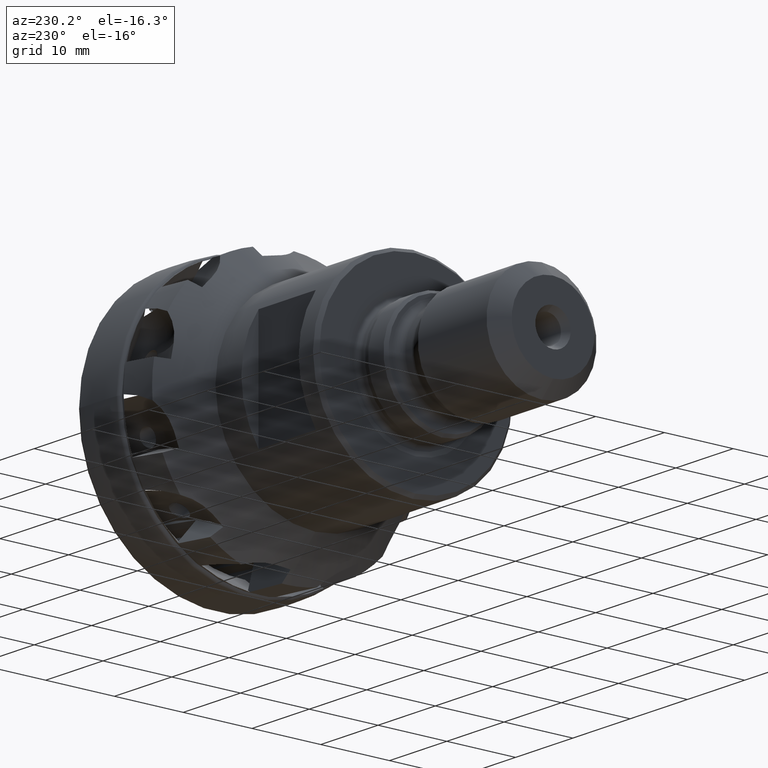
[diagram: clean part render]
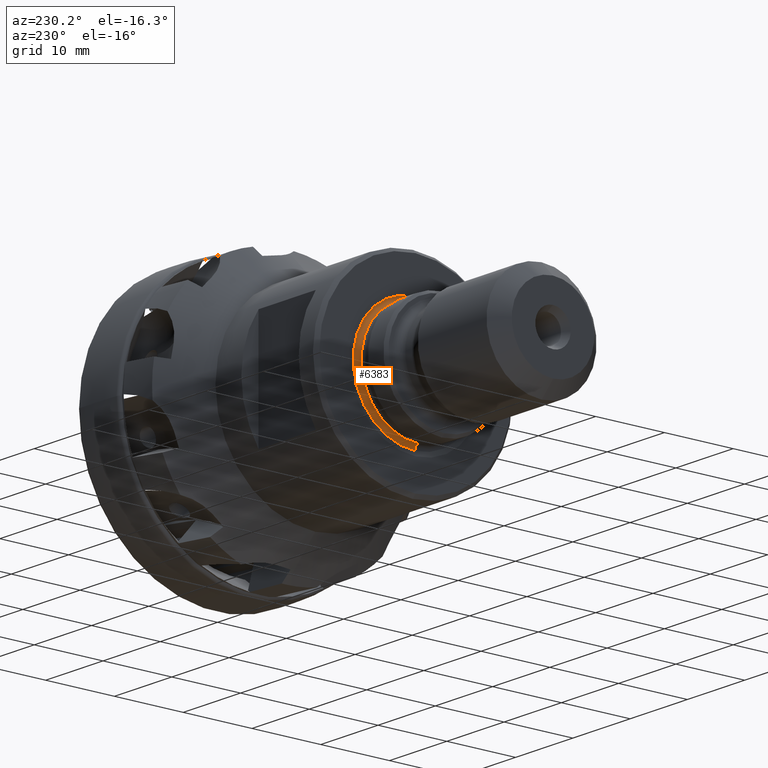
[diagram: same view with one face highlighted and labeled with its STEP entity id]
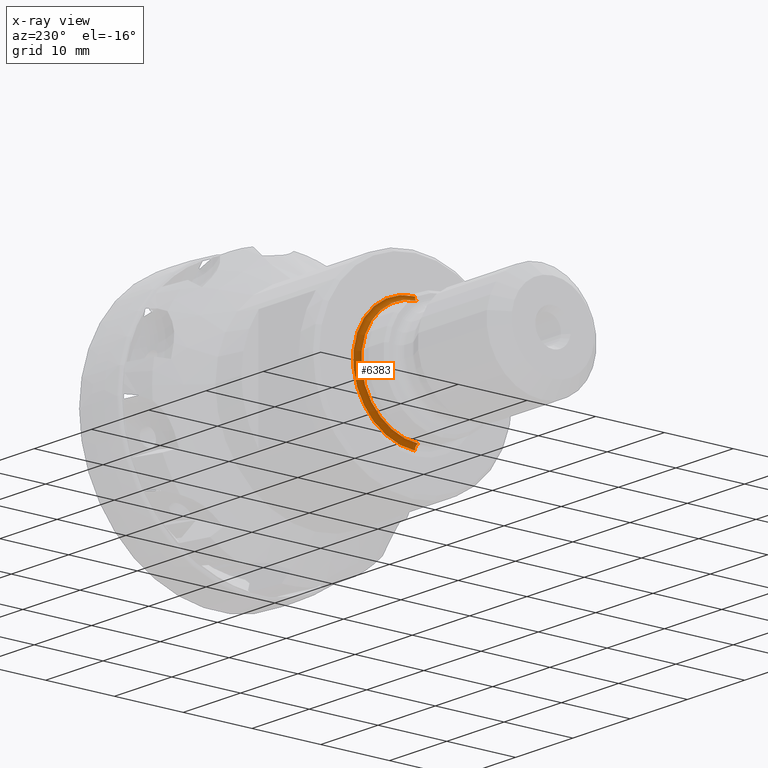
[diagram: x-ray of the same camera — body ghosted, the highlighted face saturated]
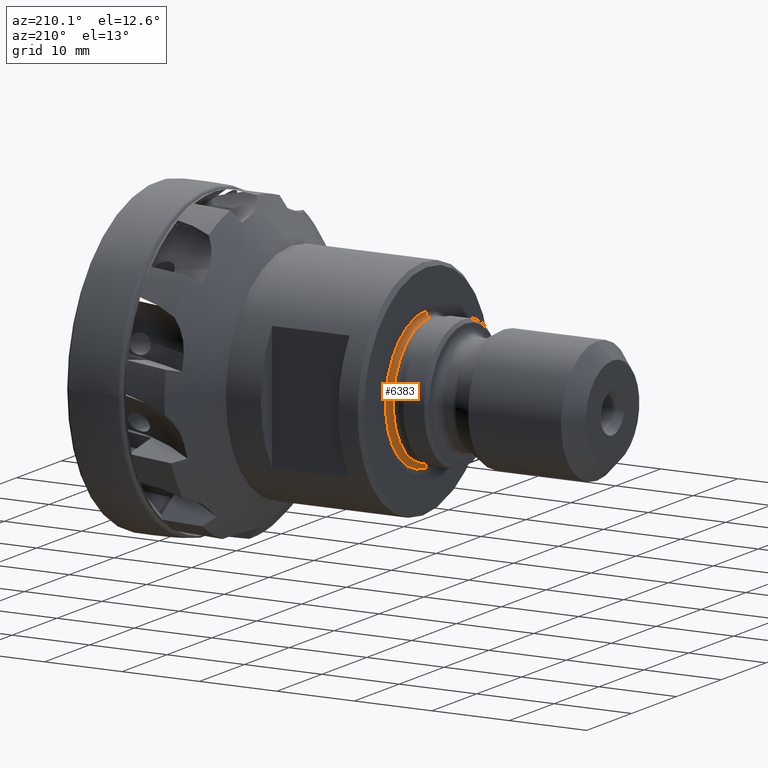
[diagram: same view with one face highlighted and labeled with its STEP entity id]
A machine part, auxiliary view. The second image highlights one B-rep face of the part: STEP entity #6383.
The next image is the same camera in x-ray: the body ghosted, the highlighted face saturated — about 0% of this face is hidden behind the body in this view.
A second angle (auxiliary view) of the same face is appended — the face is thin or edge-on in the first view.
In plain terms, the highlighted toroidal blend (fillet) surface has major radius 8.9 mm and minor (blend) radius 0.6 mm.
Its self-contained STEP definition (entity closure, byte-faithful):
#153 = EDGE_LOOP ( 'NONE', ( #783, #782, #781, #796 ) ) ;
#781 = ORIENTED_EDGE ( 'NONE', *, *, #9638, .T. ) ;
#782 = ORIENTED_EDGE ( 'NONE', *, *, #5787, .F. ) ;
#783 = ORIENTED_EDGE ( 'NONE', *, *, #9640, .F. ) ;
#796 = ORIENTED_EDGE ( 'NONE', *, *, #9643, .T. ) ;
#1430 = CARTESIAN_POINT ( 'NONE',  ( -35.04999993424464600, 0.0000000000000000000, -8.899999998548516100 ) ) ;
#1431 = DIRECTION ( 'NONE',  ( -0.0000000000000000000, -1.000000000000000000, -0.0000000000000000000 ) ) ;
#1432 = DIRECTION ( 'NONE',  ( 0.0000000000000000000, 0.0000000000000000000, -1.000000000000000000 ) ) ;
#1438 = CARTESIAN_POINT ( 'NONE',  ( -35.04999993424464600, 1.089935651063388900E-015, 8.899999998548516100 ) ) ;
#1439 = DIRECTION ( 'NONE',  ( 0.0000000000000000000, 1.000000000000000000, -1.224646799147353200E-016 ) ) ;
#1440 = DIRECTION ( 'NONE',  ( 0.0000000000000000000, 1.224646799147353700E-016, 1.000000000000000000 ) ) ;
#1447 = CARTESIAN_POINT ( 'NONE',  ( -35.04999993424465300, 0.0000000000000000000, 0.0000000000000000000 ) ) ;
#1448 = DIRECTION ( 'NONE',  ( 1.000000000000000000, -0.0000000000000000000, -0.0000000000000000000 ) ) ;
#1449 = DIRECTION ( 'NONE',  ( 0.0000000000000000000, 0.0000000000000000000, -1.000000000000000000 ) ) ;
#3358 = CIRCLE ( 'NONE', #3364, 0.5999999999999980900 ) ;
#3359 = CIRCLE ( 'NONE', #3360, 0.5999999999999980900 ) ;
#3360 = AXIS2_PLACEMENT_3D ( 'NONE', #1430, #1431, #1432 ) ;
#3361 = CIRCLE ( 'NONE', #3369, 8.299999998548518200 ) ;
#3364 = AXIS2_PLACEMENT_3D ( 'NONE', #1438, #1439, #1440 ) ;
#3369 = AXIS2_PLACEMENT_3D ( 'NONE', #1447, #1448, #1449 ) ;
#3551 = CARTESIAN_POINT ( 'NONE',  ( -34.45587803640266600, 0.0000000000000000000, 0.0000000000000000000 ) ) ;
#3552 = DIRECTION ( 'NONE',  ( 1.000000000000000000, -0.0000000000000000000, -0.0000000000000000000 ) ) ;
#3553 = DIRECTION ( 'NONE',  ( 0.0000000000000000000, 0.0000000000000000000, -1.000000000000000000 ) ) ;
#4737 = TOROIDAL_SURFACE ( 'NONE', #4751, 8.899999998548516100, 0.5999999999999979800 ) ;
#4751 = AXIS2_PLACEMENT_3D ( 'NONE', #8571, #8568, #8573 ) ;
#5787 = EDGE_CURVE ( 'NONE', #9443, #9444, #8212, .T. ) ;
#6383 = ADVANCED_FACE ( 'NONE', ( #8570 ), #4737, .F. ) ;
#7542 = CARTESIAN_POINT ( 'NONE',  ( -35.04999993424465300, 0.0000000000000000000, -8.299999998548518200 ) ) ;
#7599 = CARTESIAN_POINT ( 'NONE',  ( -34.45587803640266600, 1.141203869713795100E-015, -8.983780488548518400 ) ) ;
#7600 = CARTESIAN_POINT ( 'NONE',  ( -34.45587803640266600, 0.0000000000000000000, 8.983780488548518400 ) ) ;
#7611 = CARTESIAN_POINT ( 'NONE',  ( -35.04999993424465300, 1.058326322534443300E-015, 8.299999998548518200 ) ) ;
#8212 = CIRCLE ( 'NONE', #8218, 8.983780488548518400 ) ;
#8218 = AXIS2_PLACEMENT_3D ( 'NONE', #3551, #3552, #3553 ) ;
#8568 = DIRECTION ( 'NONE',  ( 1.000000000000000000, -0.0000000000000000000, -0.0000000000000000000 ) ) ;
#8570 = FACE_OUTER_BOUND ( 'NONE', #153, .T. ) ;
#8571 = CARTESIAN_POINT ( 'NONE',  ( -35.04999993424464600, 0.0000000000000000000, 0.0000000000000000000 ) ) ;
#8573 = DIRECTION ( 'NONE',  ( 0.0000000000000000000, 0.0000000000000000000, -1.000000000000000000 ) ) ;
#9386 = VERTEX_POINT ( 'NONE', #7542 ) ;
#9443 = VERTEX_POINT ( 'NONE', #7599 ) ;
#9444 = VERTEX_POINT ( 'NONE', #7600 ) ;
#9455 = VERTEX_POINT ( 'NONE', #7611 ) ;
#9638 = EDGE_CURVE ( 'NONE', #9443, #9386, #3359, .T. ) ;
#9640 = EDGE_CURVE ( 'NONE', #9444, #9455, #3358, .T. ) ;
#9643 = EDGE_CURVE ( 'NONE', #9386, #9455, #3361, .T. ) ;